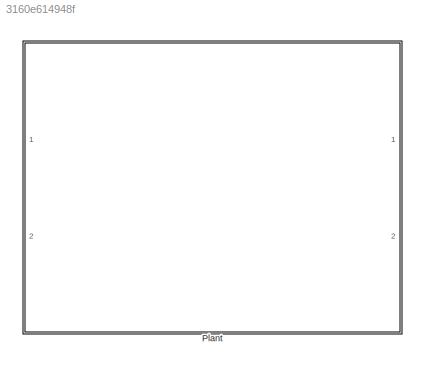
MODEL slx_3160e614948f
KIND model
CONFIG AbsTol = auto
CONFIG EnableMultiTasking = on
CONFIG FixedStep = 0.002
CONFIG MaxStep = auto
CONFIG MinStep = auto
CONFIG RelTol = 1e-3
CONFIG SampleTimeConstraint = Unconstrained
CONFIG Solver = ode1
CONFIG SolverName = ode1
CONFIG StartTime = 0.0
CONFIG StopTime = inf
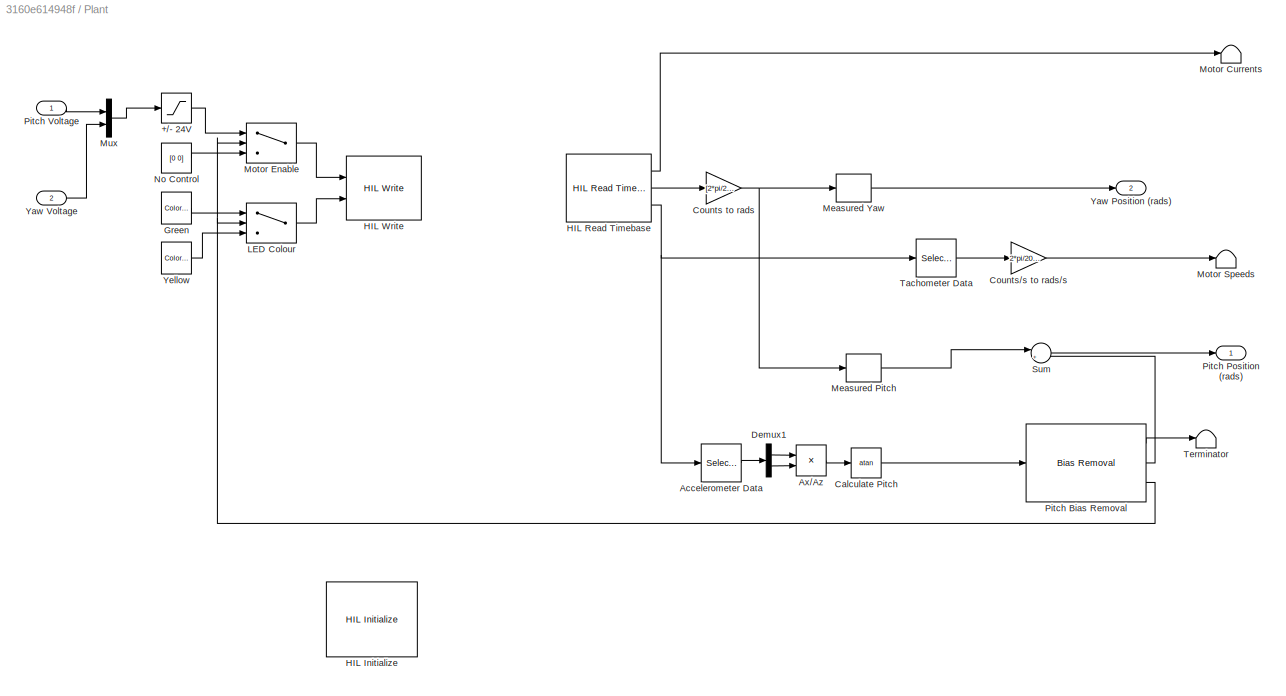
BLOCK [SubSystem] Plant
  Ports = [2, 2]
  RequestExecContextInheritance = off
BLOCK [Saturate] Plant/+//- 24V
  InputPortMap = u0
  LowerLimit = -24
  Ports = [1, 1]
  UpperLimit = 24
BLOCK [Selector] Plant/Accelerometer Data
  IndexOptions = Index vector (dialog)
  Indices = [1 2]
  InputPortWidth = 4
  OutputSizes = 1
  Ports = [1, 1]
BLOCK [Product] Plant/Ax//Az
  InputSameDT = off
  Inputs = */
  OutDataTypeStr = Inherit: Inherit via internal rule
  Ports = [2, 1]
  RndMeth = Floor
  SaturateOnIntegerOverflow = off
BLOCK [Trigonometry] Plant/Calculate Pitch
  Operator = atan
  Ports = [1, 1]
BLOCK [Gain] Plant/Counts to rads
  Gain = [2*pi/2048 2*pi/4096]
  OutDataTypeStr = Inherit: Inherit via internal rule
  ParamDataTypeStr = Inherit: Inherit via internal rule
  SaturateOnIntegerOverflow = off
BLOCK [Gain] Plant/Counts//s to rads//s
  Gain = 2*pi/2048
  OutDataTypeStr = Inherit: Inherit via internal rule
  ParamDataTypeStr = Inherit: Inherit via internal rule
  SaturateOnIntegerOverflow = off
BLOCK [Demux] Plant/Demux1
  DisplayOption = bar
  Outputs = 2
  Ports = [1, 2]
BLOCK [Reference] Plant/Green  REF=quarc_library/Sources/Signals/Color Constant
  Ports = [0, 1]
  SourceBlock = quarc_library/Sources/Signals/Color Constant
  SourceType = Color Constant
BLOCK [Reference] Plant/HIL Initialize  REF=quarc_library/Data Acquisition/Generic/Configuration/HIL Initialize
  AttributesFormatString = %<object_name> (%<board_type>-%<board_number>)
  Ports = []
  Priority = -99
  SourceBlock = quarc_library/Data Acquisition/Generic/Configuration/HIL Initialize
  SourceType = HIL Initialize
  UserDataPersistent = on
BLOCK [Reference] Plant/HIL Read Timebase  REF=quarc_library/Data Acquisition/Generic/Timebases/HIL Read
Timebase
  AttributesFormatString = (%<object_name>)
  Ports = [0, 3]
  SourceBlock = quarc_library/Data Acquisition/Generic/Timebases/HIL Read\nTimebase
  SourceType = HIL Read Timebase
  UserDataPersistent = on
BLOCK [Reference] Plant/HIL Write  REF=quarc_library/Data Acquisition/Generic/Immediate I//O/HIL Write
  AttributesFormatString = (%<object_name>)
  Ports = [2]
  SourceBlock = quarc_library/Data Acquisition/Generic/Immediate I//O/HIL Write
  SourceType = HIL Write
  UserDataPersistent = on
BLOCK [Switch] Plant/LED Colour
  Criteria = u2 > Threshold
  InputSameDT = off
  SaturateOnIntegerOverflow = off
BLOCK [Selector] Plant/Measured Pitch
  IndexOptions = Index vector (dialog)
  Indices = [1]
  InputPortWidth = 2
  OutputSizes = 1
  Ports = [1, 1]
BLOCK [Selector] Plant/Measured Yaw
  IndexOptions = Index vector (dialog)
  Indices = [2]
  InputPortWidth = 2
  OutputSizes = 1
  Ports = [1, 1]
BLOCK [Terminator] Plant/Motor Currents
BLOCK [Switch] Plant/Motor Enable
  Criteria = u2 > Threshold
  InputSameDT = off
  SaturateOnIntegerOverflow = off
BLOCK [Terminator] Plant/Motor Speeds
BLOCK [Mux] Plant/Mux
  DisplayOption = bar
  Inputs = 2
  Ports = [2, 1]
BLOCK [Constant] Plant/No Control
  Value = [0 0]
BLOCK [Reference] Plant/Pitch Bias Removal  REF=quarc_library/Discrete/Bias Removal
  Ports = [1, 3]
  SourceBlock = quarc_library/Discrete/Bias Removal
  SourceType = Bias Removal
BLOCK [Outport] Plant/Pitch Position (rads)
  IconDisplay = Port number
BLOCK [Inport] Plant/Pitch Voltage
  IconDisplay = Port number
BLOCK [Sum] Plant/Sum
  IconShape = round
  InputSameDT = off
  Inputs = |+-
  OutDataTypeStr = Inherit: Inherit via internal rule
  Ports = [2, 1]
  SaturateOnIntegerOverflow = off
BLOCK [Selector] Plant/Tachometer Data
  IndexOptions = Index vector (dialog)
  Indices = [3 4]
  InputPortWidth = 4
  OutputSizes = 1
  Ports = [1, 1]
BLOCK [Terminator] Plant/Terminator
BLOCK [Outport] Plant/Yaw Position (rads)
  IconDisplay = Port number
  Port = 2
BLOCK [Inport] Plant/Yaw Voltage
  IconDisplay = Port number
  Port = 2
BLOCK [Reference] Plant/Yellow  REF=quarc_library/Sources/Signals/Color Constant
  Ports = [0, 1]
  SourceBlock = quarc_library/Sources/Signals/Color Constant
  SourceType = Color Constant
LINE Plant/+//- 24V:1 -> Plant/Motor Enable:1
LINE Plant/Accelerometer Data:1 -> Plant/Demux1:1
LINE Plant/Ax//Az:1 -> Plant/Calculate Pitch:1
LINE Plant/Calculate Pitch:1 -> Plant/Pitch Bias Removal:1
NET Plant/Counts to rads:1 -> Plant/Measured Pitch:1, Plant/Measured Yaw:1
LINE Plant/Counts//s to rads//s:1 -> Plant/Motor Speeds:1
LINE Plant/Demux1:1 -> Plant/Ax//Az:1
LINE Plant/Demux1:2 -> Plant/Ax//Az:2
LINE Plant/Green:1 -> Plant/LED Colour:1
LINE Plant/HIL Read Timebase:1 -> Plant/Motor Currents:1
LINE Plant/HIL Read Timebase:2 -> Plant/Counts to rads:1
NET Plant/HIL Read Timebase:3 -> Plant/Accelerometer Data:1, Plant/Tachometer Data:1
LINE Plant/LED Colour:1 -> Plant/HIL Write:2
LINE Plant/Measured Pitch:1 -> Plant/Sum:1
LINE Plant/Measured Yaw:1 -> Plant/Yaw Position (rads):1
LINE Plant/Motor Enable:1 -> Plant/HIL Write:1
LINE Plant/Mux:1 -> Plant/+//- 24V:1
LINE Plant/No Control:1 -> Plant/Motor Enable:3
LINE Plant/Pitch Bias Removal:1 -> Plant/Terminator:1
LINE Plant/Pitch Bias Removal:2 -> Plant/Sum:2
NET Plant/Pitch Bias Removal:3 -> Plant/LED Colour:2, Plant/Motor Enable:2
LINE Plant/Pitch Voltage:1 -> Plant/Mux:1
LINE Plant/Sum:1 -> Plant/Pitch Position (rads):1
LINE Plant/Tachometer Data:1 -> Plant/Counts//s to rads//s:1
LINE Plant/Yaw Voltage:1 -> Plant/Mux:2
LINE Plant/Yellow:1 -> Plant/LED Colour:3
note: NET lines group one-source signal fan-out (src -> all destinations, sorted); 1:1 wires keep LINE
